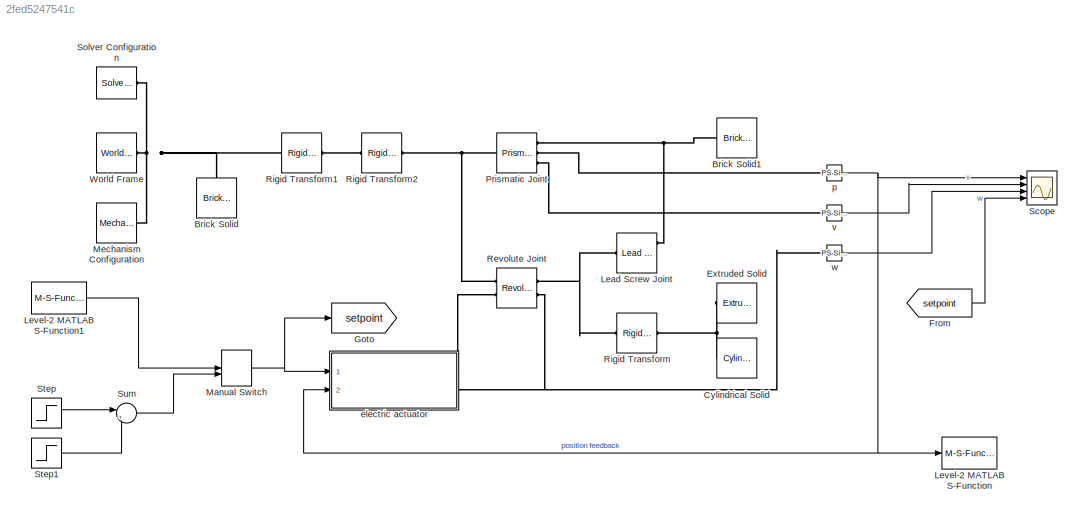
MODEL slx_2fed5247541c
KIND model
CONFIG AbsTol = 1e-3
CONFIG EnableMultiTasking = on
CONFIG FixedStep = 0.01
CONFIG MaxStep = auto
CONFIG MinStep = auto
CONFIG RelTol = 1e-3
CONFIG SampleTimeConstraint = Unconstrained
CONFIG SolverName = VariableStepAuto
CONFIG StartTime = 0.0
CONFIG StopTime = Inf
BLOCK [Reference] Brick Solid  REF=sm_lib/Body Elements/Brick Solid
  Ports = [0, 0, 0, 0, 0, 0, 1]
  SourceBlock = sm_lib/Body Elements/Brick Solid
  SourceProductName = Multibody
  SourceType = Brick Solid
BLOCK [Reference] Brick Solid1  REF=sm_lib/Body Elements/Brick Solid
  NameLocation = right
  Ports = [0, 0, 0, 0, 0, 0, 1]
  SourceBlock = sm_lib/Body Elements/Brick Solid
  SourceProductName = Multibody
  SourceType = Brick Solid
BLOCK [Reference] Cylindrical Solid  REF=sm_lib/Body Elements/Cylindrical Solid
  Ports = [0, 0, 0, 0, 0, 1]
  SourceBlock = sm_lib/Body Elements/Cylindrical Solid
  SourceProductBaseCode = MS
  SourceType = Cylindrical Solid
BLOCK [Reference] Extruded Solid  REF=sm_lib/Body Elements/Extruded Solid
  Ports = [0, 0, 0, 0, 0, 1]
  SourceBlock = sm_lib/Body Elements/Extruded Solid
  SourceProductBaseCode = MS
  SourceType = Extruded Solid
BLOCK [From] From
  GotoTag = setpoint
BLOCK [Goto] Goto
  GotoTag = setpoint
BLOCK [Reference] Lead Screw Joint  REF=sm_lib/Joints/Lead Screw
Joint
  Ports = [0, 0, 0, 0, 0, 1, 3]
  SourceBlock = sm_lib/Joints/Lead Screw\nJoint
  SourceProductBaseCode = MS
  SourceType = Lead Screw\nJoint
BLOCK [M-S-Function] Level-2 MATLAB S-Function
  Commented = on
  FunctionName = mqtt_pub
  Parameters = M
  Ports = [1]
BLOCK [M-S-Function] Level-2 MATLAB S-Function1
  FunctionName = mqtt_sub
  Parameters = M,sub
  Ports = [0, 1]
BLOCK [ManualSwitch] Manual Switch
BLOCK [Reference] Mechanism Configuration  REF=sm_lib/Utilities/Mechanism
Configuration
  Ports = [0, 0, 0, 0, 0, 0, 1]
  SourceBlock = sm_lib/Utilities/Mechanism\nConfiguration
  SourceProductName = Multibody
  SourceType = Mechanism\nConfiguration
BLOCK [Reference] Prismatic Joint  REF=sm_lib/Joints/Prismatic
Joint
  Ports = [0, 0, 0, 0, 0, 1, 3]
  SourceBlock = sm_lib/Joints/Prismatic\nJoint
  SourceProductBaseCode = MS
  SourceType = Prismatic\nJoint
BLOCK [Reference] Revolute Joint  REF=sm_lib/Joints/Revolute Joint
  Ports = [0, 0, 0, 0, 0, 2, 2]
  SourceBlock = sm_lib/Joints/Revolute Joint
  SourceProductBaseCode = MS
  SourceType = Revolute Joint
BLOCK [Reference] Rigid Transform  REF=sm_lib/Frames and
Transforms/Rigid
Transform
  Ports = [0, 0, 0, 0, 0, 1, 1]
  SourceBlock = sm_lib/Frames and\nTransforms/Rigid\nTransform
  SourceProductBaseCode = MS
  SourceType = Rigid\nTransform
BLOCK [Reference] Rigid Transform1  REF=sm_lib/Frames and
Transforms/Rigid
Transform
  Ports = [0, 0, 0, 0, 0, 1, 1]
  SourceBlock = sm_lib/Frames and\nTransforms/Rigid\nTransform
  SourceProductBaseCode = MS
  SourceType = Rigid\nTransform
BLOCK [Reference] Rigid Transform2  REF=sm_lib/Frames and
Transforms/Rigid
Transform
  Ports = [0, 0, 0, 0, 0, 1, 1]
  SourceBlock = sm_lib/Frames and\nTransforms/Rigid\nTransform
  SourceProductBaseCode = MS
  SourceType = Rigid\nTransform
BLOCK [Scope] Scope
  Floating = off
  NumInputPorts = 4
  Ports = [4]
  ScopeSpecificationString = Simulink.scopes.TimeScopeBlockCfg('CurrentConfiguration', extmgr.ConfigurationSet(extmgr.Configuration('Core','General UI',true),extmgr.Configuration('Core','Source UI',true),extmgr.Configuration('Sources','WiredSimulink',true),extmgr.Configuration('Visuals','Time Domain',true,'SerializedDisplays',{struct('MinYLimReal','0.08545','MaxYLimReal','0.23096','YLabelReal','','MinYLimMag','0.08545','MaxYL...<+3468ch>
BLOCK [Reference] Solver Configuration  REF=nesl_utility/Solver
Configuration
  Ports = [0, 0, 0, 0, 0, 0, 1]
  SourceBlock = nesl_utility/Solver\nConfiguration
  SourceProductName = Utilities
  SourceType = Solver\nConfiguration
BLOCK [Step] Step
  After = -100
  SampleTime = 0
  Time = 2
BLOCK [Step] Step1
  After = 100
  SampleTime = 0
  Time = 6
BLOCK [Sum] Sum
  Inputs = |++
  Ports = [2, 1]
BLOCK [Reference] World Frame  REF=sm_lib/Frames and
Transforms/World Frame
  Ports = [0, 0, 0, 0, 0, 0, 1]
  SourceBlock = sm_lib/Frames and\nTransforms/World Frame
  SourceProductName = Multibody
  SourceType = World Frame
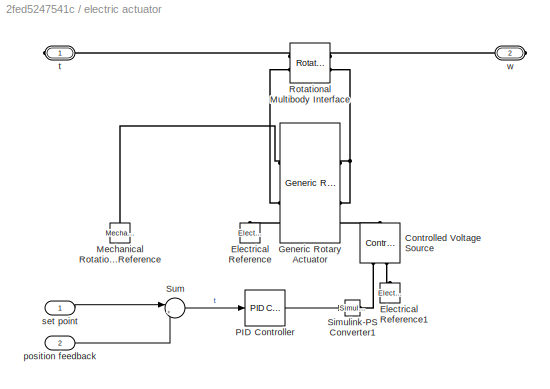
BLOCK [SubSystem] electric actuator
  Ports = [2, 0, 0, 0, 0, 0, 2]
  RequestExecContextInheritance = off
BLOCK [Reference] electric actuator/Controlled Voltage Source  REF=fl_lib/Electrical/Electrical Sources/Controlled Voltage
Source
  NameLocation = right
  Ports = [0, 0, 0, 0, 0, 1, 2]
  SourceBlock = fl_lib/Electrical/Electrical Sources/Controlled Voltage\nSource
  SourceProductBaseCode = SS
  SourceType = Controlled Voltage\nSource
BLOCK [Reference] electric actuator/Electrical Reference  REF=fl_lib/Electrical/Electrical Elements/Electrical Reference
  NameLocation = right
  Ports = [0, 0, 0, 0, 0, 1]
  SourceBlock = fl_lib/Electrical/Electrical Elements/Electrical Reference
  SourceProductBaseCode = SS
  SourceType = Electrical Reference
BLOCK [Reference] electric actuator/Electrical Reference1  REF=fl_lib/Electrical/Electrical Elements/Electrical Reference
  NameLocation = right
  Ports = [0, 0, 0, 0, 0, 1]
  SourceBlock = fl_lib/Electrical/Electrical Elements/Electrical Reference
  SourceProductBaseCode = SS
  SourceType = Electrical Reference
BLOCK [Reference] electric actuator/Generic Rotary Actuator  REF=ee_lib/Electromechanical/Mechatronic
Actuators/Generic Rotary
Actuator
  NameLocation = top
  Ports = [0, 0, 0, 0, 0, 2, 2]
  SourceBlock = ee_lib/Electromechanical/Mechatronic\nActuators/Generic Rotary\nActuator
  SourceProductBaseCode = PS
  SourceType = Generic Rotary\nActuator
BLOCK [Reference] electric actuator/Mechanical Rotational Reference  REF=fl_lib/Mechanical/Rotational Elements/Mechanical
Rotational Reference
  NameLocation = right
  Ports = [0, 0, 0, 0, 0, 1]
  SourceBlock = fl_lib/Mechanical/Rotational Elements/Mechanical\nRotational Reference
  SourceProductBaseCode = SS
  SourceType = Mechanical\nRotational Reference
BLOCK [Reference] electric actuator/PID Controller  REF=slpidlib/PID Controller
  Ports = [1, 1]
  SourceBlock = slpidlib/PID Controller
  SourceProductBaseCode = SL
  SourceType = PID 1dof
BLOCK [Reference] electric actuator/Rotational Multibody Interface  REF=fl_lib/Mechanical/Multibody Interfaces/Rotational Multibody
Interface
  Ports = [0, 0, 0, 0, 0, 2, 2]
  SourceBlock = fl_lib/Mechanical/Multibody Interfaces/Rotational Multibody\nInterface
  SourceProductBaseCode = SS
  SourceType = Rotational Multibody\nInterface
BLOCK [Reference] electric actuator/Simulink-PS Converter1  REF=nesl_utility/Simulink-PS
Converter
  Ports = [1, 0, 0, 0, 0, 0, 1]
  SourceBlock = nesl_utility/Simulink-PS\nConverter
  SourceProductName = Utilities
  SourceType = Simulink-PS\nConverter
BLOCK [Sum] electric actuator/Sum
  Inputs = |+-
  Ports = [2, 1]
BLOCK [Inport] electric actuator/position feedback
  Port = 2
BLOCK [Inport] electric actuator/set point
BLOCK [PMIOPort] electric actuator/t
  Side = Right
BLOCK [PMIOPort] electric actuator/w
  Port = 2
  Side = Right
BLOCK [Reference] p  REF=nesl_utility/PS-Simulink
Converter
  Ports = [0, 1, 0, 0, 0, 1]
  SourceBlock = nesl_utility/PS-Simulink\nConverter
  SourceProductName = Utilities
  SourceType = PS-Simulink\nConverter
BLOCK [Reference] v  REF=nesl_utility/PS-Simulink
Converter
  Ports = [0, 1, 0, 0, 0, 1]
  SourceBlock = nesl_utility/PS-Simulink\nConverter
  SourceProductName = Utilities
  SourceType = PS-Simulink\nConverter
BLOCK [Reference] w  REF=nesl_utility/PS-Simulink
Converter
  Ports = [0, 1, 0, 0, 0, 1]
  SourceBlock = nesl_utility/PS-Simulink\nConverter
  SourceProductName = Utilities
  SourceType = PS-Simulink\nConverter
LINE From:1 -> Scope:4
LINE Level-2 MATLAB S-Function1:1 -> Manual Switch:1
NET Manual Switch:1 -> Goto:1, electric actuator:1
LINE Step1:1 -> Sum:2
LINE Step:1 -> Sum:1
LINE Sum:1 -> Manual Switch:2
LINE electric actuator/PID Controller:1 -> electric actuator/Simulink-PS Converter1:1
LINE electric actuator/Sum:1 -> electric actuator/PID Controller:1
LINE electric actuator/position feedback:1 -> electric actuator/Sum:2
LINE electric actuator/set point:1 -> electric actuator/Sum:1
NET p:1 -> Level-2 MATLAB S-Function:1, Scope:1, electric actuator:2
LINE v:1 -> Scope:2
LINE w:1 -> Scope:3
PNET net1: Brick Solid1:RConn1 -- Lead Screw Joint:RConn1 -- Prismatic Joint:RConn1
PNET net2: Brick Solid:RConn1 -- Mechanism Configuration:RConn1 -- Rigid Transform1:LConn1 -- Solver Configuration:RConn1 -- World Frame:RConn1
PNET net3: Cylindrical Solid:LConn1 -- Extruded Solid:LConn1 -- Rigid Transform:RConn1
PNET net4: Lead Screw Joint:LConn1 -- Revolute Joint:RConn1 -- Rigid Transform:LConn1
PNET net5: Prismatic Joint:LConn1 -- Revolute Joint:LConn1 -- Rigid Transform2:RConn1
PLINE Prismatic Joint:RConn2 -- p:LConn1
PLINE Prismatic Joint:RConn3 -- v:LConn1
PLINE Revolute Joint:LConn2 -- electric actuator:RConn1
PNET net6: Revolute Joint:RConn2 -- electric actuator:RConn2 -- w:LConn1
PLINE Rigid Transform1:RConn1 -- Rigid Transform2:LConn1
PLINE electric actuator/Controlled Voltage Source:LConn1 -- electric actuator/Generic Rotary Actuator:LConn1
PLINE electric actuator/Controlled Voltage Source:RConn1 -- electric actuator/Simulink-PS Converter1:RConn1
PLINE electric actuator/Controlled Voltage Source:RConn2 -- electric actuator/Electrical Reference1:LConn1
PLINE electric actuator/Electrical Reference:LConn1 -- electric actuator/Generic Rotary Actuator:RConn1
PLINE electric actuator/Generic Rotary Actuator:LConn2 -- electric actuator/Rotational Multibody Interface:RConn2
PNET net7: electric actuator/Generic Rotary Actuator:RConn2 -- electric actuator/Mechanical Rotational Reference:LConn1 -- electric actuator/Rotational Multibody Interface:LConn2
PLINE electric actuator/Rotational Multibody Interface:LConn1 -- electric actuator/t:RConn1
PLINE electric actuator/Rotational Multibody Interface:RConn1 -- electric actuator/w:RConn1
note: NET lines group one-source signal fan-out (src -> all destinations, sorted); 1:1 wires keep LINE; PNET lines group multi-terminal physical nets as a canonical sorted terminal list (undirected conserving connections); 2-terminal nets keep the pairwise PLINE form
